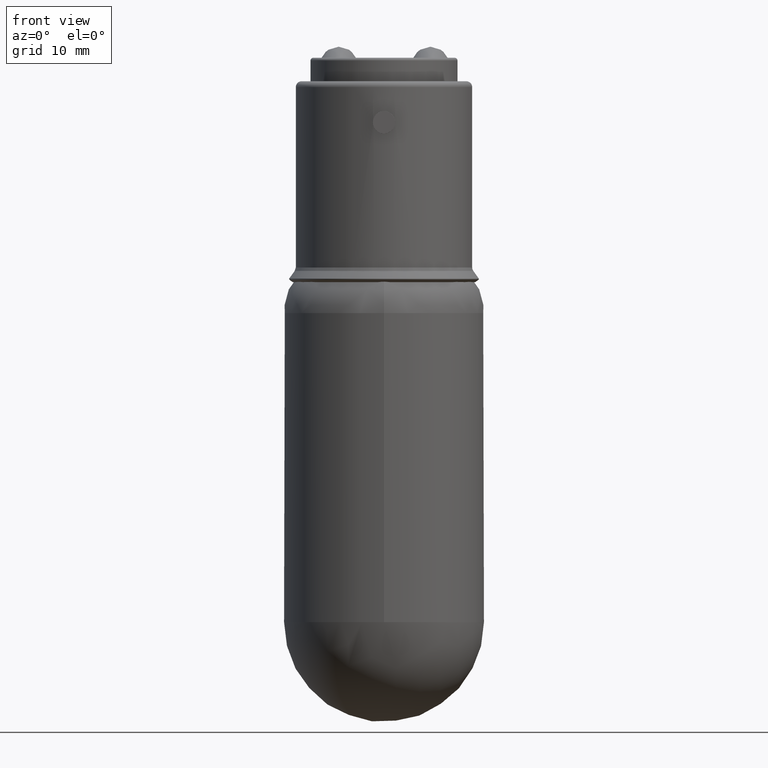
[diagram: clean part render]
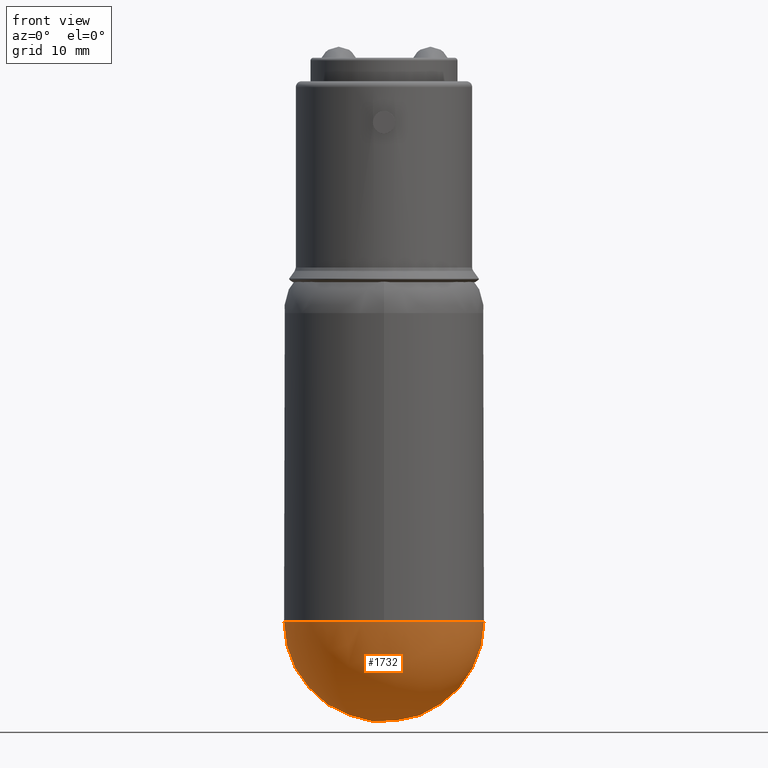
[diagram: same view with one face highlighted and labeled with its STEP entity id]
A machine part, front view. The second image highlights one B-rep face of the part: STEP entity #1732.
In plain terms, the highlighted spherical surface has radius 8.5 mm.
Its self-contained STEP definition (entity closure, byte-faithful):
#1709=CARTESIAN_POINT('',(12.430806519322440,8.136423955264533,0.0));
#1710=VERTEX_POINT('',#1709);
#1711=CARTESIAN_POINT('',(12.430806519322440,-0.363576044735471,0.0));
#1712=DIRECTION('',(1.0,0.0,0.0));
#1713=DIRECTION('',(0.0,1.0,0.0));
#1714=AXIS2_PLACEMENT_3D('',#1711,#1712,#1713);
#1715=CIRCLE('',#1714,8.500000000000004);
#1716=EDGE_CURVE('',#1710,#1710,#1715,.T.);
#1724=CARTESIAN_POINT('',(12.430806519322442,-0.363576044735468,0.0));
#1725=DIRECTION('',(0.0,0.0,1.0));
#1726=DIRECTION('',(1.0,0.0,0.0));
#1727=AXIS2_PLACEMENT_3D('',#1724,#1725,#1726);
#1728=SPHERICAL_SURFACE('',#1727,8.500000000000007);
#1729=ORIENTED_EDGE('',*,*,#1716,.T.);
#1730=EDGE_LOOP('',(#1729));
#1731=FACE_OUTER_BOUND('',#1730,.T.);
#1732=ADVANCED_FACE('',(#1731),#1728,.T.);